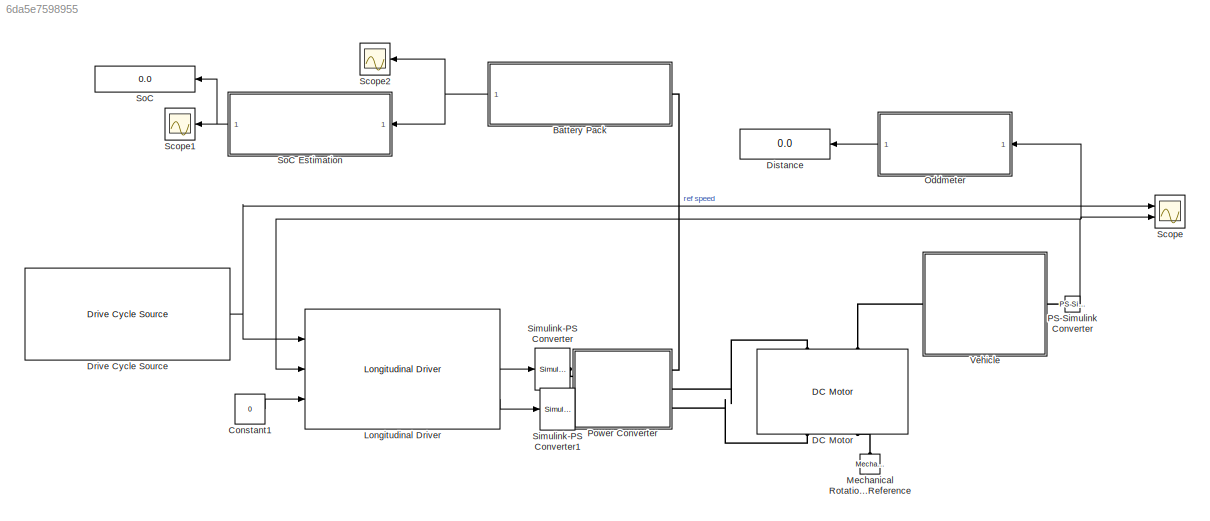
MODEL slx_6da5e7598955
KIND model
CONFIG AbsTol = auto
CONFIG EnableMultiTasking = off
CONFIG FixedStep = auto
CONFIG MaxStep = auto
CONFIG MinStep = auto
CONFIG RelTol = 1e-3
CONFIG SampleTimeConstraint = Unconstrained
CONFIG SolverName = VariableStepAuto
CONFIG StartTime = 0
CONFIG StopTime = 2474
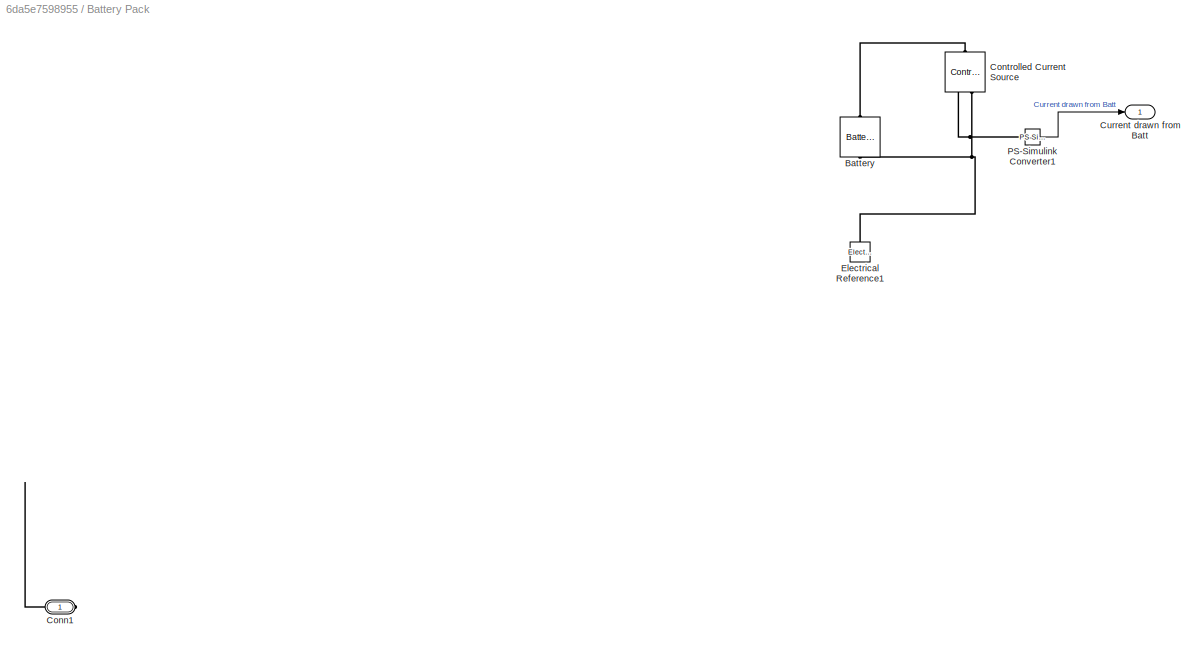
BLOCK [SubSystem] Battery Pack
  Ports = [0, 1, 0, 0, 0, 1]
  RequestExecContextInheritance = off
BLOCK [Reference] Battery Pack/Battery  REF=ee_lib/Sources/Battery
  NameLocation = right
  Ports = [0, 0, 0, 0, 0, 1, 1]
  SourceBlock = ee_lib/Sources/Battery
  SourceProductBaseCode = PS
  SourceType = Battery
BLOCK [PMIOPort] Battery Pack/Conn1
  Side = Left
BLOCK [Reference] Battery Pack/Controlled Current Source  REF=fl_lib/Electrical/Electrical Sources/Controlled Current
Source
  NameLocation = right
  Ports = [0, 0, 0, 0, 0, 1, 2]
  SourceBlock = fl_lib/Electrical/Electrical Sources/Controlled Current\nSource
  SourceProductBaseCode = SS
  SourceType = Controlled Current\nSource
BLOCK [Outport] Battery Pack/Current drawn from Batt
BLOCK [Reference] Battery Pack/Electrical Reference1  REF=fl_lib/Electrical/Electrical Elements/Electrical Reference
  NameLocation = right
  Ports = [0, 0, 0, 0, 0, 1]
  SourceBlock = fl_lib/Electrical/Electrical Elements/Electrical Reference
  SourceProductBaseCode = SS
  SourceType = Electrical Reference
BLOCK [Reference] Battery Pack/PS-Simulink Converter1  REF=nesl_utility/PS-Simulink
Converter
  Ports = [0, 1, 0, 0, 0, 1]
  SourceBlock = nesl_utility/PS-Simulink\nConverter
  SourceProductBaseCode = PW,SS
  SourceType = PS-Simulink\nConverter
BLOCK [Constant] Constant1
  Value = 0
BLOCK [Reference] DC Motor  REF=ee_lib/Electromechanical/Brushed Motors/DC Motor
  NameLocation = right
  Ports = [0, 0, 0, 0, 0, 2, 2]
  SourceBlock = ee_lib/Electromechanical/Brushed Motors/DC Motor
  SourceProductBaseCode = PS
  SourceType = DC Motor
BLOCK [Display] Distance 
  Decimation = 1
  Ports = [1]
BLOCK [Reference] Drive Cycle Source  REF=autolibshared/Drive Cycle Source
  AttributesFormatString = %<cycleVar> (%<tfinal>)
  Ports = [0, 1]
  SourceBlock = autolibshared/Drive Cycle Source
  SourceProductBaseCode = PW,DR,MT,UV,VE
  SourceType = Drive Cycle Source
BLOCK [Reference] Longitudinal Driver  REF=autolibshared/Longitudinal Driver
  Ports = [3, 3]
  SourceBlock = autolibshared/Longitudinal Driver
  SourceProductBaseCode = PW,DR,MT,UV,VE
  SourceType = Longitudinal Driver
BLOCK [Reference] Mechanical Rotational Reference  REF=fl_lib/Mechanical/Rotational Elements/Mechanical
Rotational Reference
  NameLocation = right
  Ports = [0, 0, 0, 0, 0, 1]
  SourceBlock = fl_lib/Mechanical/Rotational Elements/Mechanical\nRotational Reference
  SourceProductBaseCode = SS
  SourceType = Mechanical\nRotational Reference
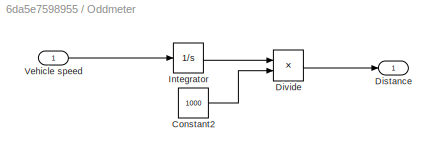
BLOCK [SubSystem] Oddmeter
  Ports = [1, 1]
  RequestExecContextInheritance = off
BLOCK [Constant] Oddmeter/Constant2
  Value = 1000
BLOCK [Outport] Oddmeter/Distance
BLOCK [Product] Oddmeter/Divide
  Inputs = */
  Ports = [2, 1]
BLOCK [Integrator] Oddmeter/Integrator
  Ports = [1, 1]
BLOCK [Inport] Oddmeter/Vehicle speed
BLOCK [Reference] PS-Simulink Converter  REF=nesl_utility/PS-Simulink
Converter
  NameLocation = top
  Ports = [0, 1, 0, 0, 0, 1]
  SourceBlock = nesl_utility/PS-Simulink\nConverter
  SourceProductBaseCode = PW,SS
  SourceType = PS-Simulink\nConverter
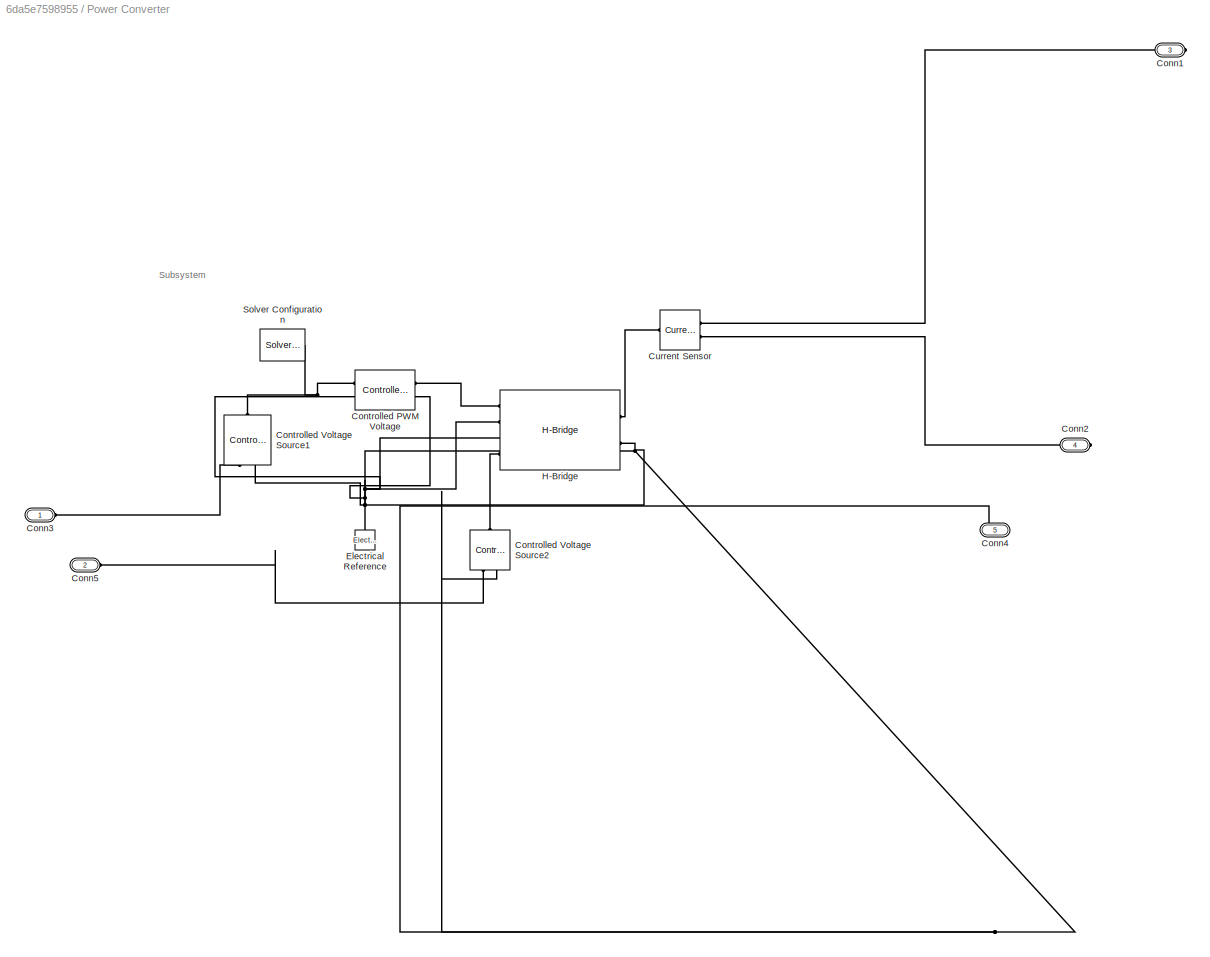
BLOCK [SubSystem] Power Converter
  Ports = [0, 0, 0, 0, 0, 2, 3]
  RequestExecContextInheritance = off
BLOCK [PMIOPort] Power Converter/Conn1
  Port = 3
  Side = Right
BLOCK [PMIOPort] Power Converter/Conn2
  Port = 4
  Side = Right
BLOCK [PMIOPort] Power Converter/Conn3
  Side = Left
BLOCK [PMIOPort] Power Converter/Conn4
  Port = 5
  Side = Right
BLOCK [PMIOPort] Power Converter/Conn5
  Port = 2
  Side = Left
BLOCK [Reference] Power Converter/Controlled PWM Voltage  REF=ee_lib/Integrated Circuits/Controlled PWM
Voltage
  Ports = [0, 0, 0, 0, 0, 2, 2]
  SourceBlock = ee_lib/Integrated Circuits/Controlled PWM\nVoltage
  SourceProductBaseCode = PS
  SourceType = Controlled PWM\nVoltage
BLOCK [Reference] Power Converter/Controlled Voltage Source1  REF=fl_lib/Electrical/Electrical Sources/Controlled Voltage
Source
  NameLocation = right
  Ports = [0, 0, 0, 0, 0, 1, 2]
  SourceBlock = fl_lib/Electrical/Electrical Sources/Controlled Voltage\nSource
  SourceProductBaseCode = SS
  SourceType = Controlled Voltage\nSource
BLOCK [Reference] Power Converter/Controlled Voltage Source2  REF=fl_lib/Electrical/Electrical Sources/Controlled Voltage
Source
  NameLocation = right
  Ports = [0, 0, 0, 0, 0, 1, 2]
  SourceBlock = fl_lib/Electrical/Electrical Sources/Controlled Voltage\nSource
  SourceProductBaseCode = SS
  SourceType = Controlled Voltage\nSource
BLOCK [Reference] Power Converter/Current Sensor  REF=fl_lib/Electrical/Electrical Sensors/Current Sensor
  Ports = [0, 0, 0, 0, 0, 1, 2]
  SourceBlock = fl_lib/Electrical/Electrical Sensors/Current Sensor
  SourceProductBaseCode = SS
  SourceType = Current Sensor
BLOCK [Reference] Power Converter/Electrical Reference  REF=fl_lib/Electrical/Electrical Elements/Electrical Reference
  NameLocation = right
  Ports = [0, 0, 0, 0, 0, 1]
  SourceBlock = fl_lib/Electrical/Electrical Elements/Electrical Reference
  SourceProductBaseCode = SS
  SourceType = Electrical Reference
BLOCK [Reference] Power Converter/H-Bridge  REF=ee_lib/Semiconductors &
Converters/Converters/H-Bridge
  Ports = [0, 0, 0, 0, 0, 4, 2]
  SourceBlock = ee_lib/Semiconductors &\nConverters/Converters/H-Bridge
  SourceProductBaseCode = PS
  SourceType = H-Bridge
BLOCK [Reference] Power Converter/Solver Configuration  REF=nesl_utility/Solver
Configuration
  Ports = [0, 0, 0, 0, 0, 0, 1]
  SourceBlock = nesl_utility/Solver\nConfiguration
  SourceProductBaseCode = PW,SS
  SourceType = Solver\nConfiguration
BLOCK [Scope] Scope
  Floating = off
  NumInputPorts = 2
  Ports = [2]
  ScopeSpecificationString = Simulink.scopes.TimeScopeBlockCfg('CurrentConfiguration', extmgr.ConfigurationSet(extmgr.Configuration('Core','General UI',true),extmgr.Configuration('Core','Source UI',true),extmgr.Configuration('Sources','WiredSimulink',true),extmgr.Configuration('Visuals','Time Domain',true,'SerializedDisplays',{struct('MinYLimReal','-3.1684','MaxYLimReal','28.51556','YLabelReal','','MinYLimMag','0.00000','MaxY...<+1426ch>
BLOCK [Scope] Scope1
  Floating = off
  NumInputPorts = 1
  Ports = [1]
  ScopeSpecificationString = Simulink.scopes.TimeScopeBlockCfg('CurrentConfiguration', extmgr.ConfigurationSet(extmgr.Configuration('Core','General UI',true),extmgr.Configuration('Core','Source UI',true),extmgr.Configuration('Sources','WiredSimulink',true,'DataLoggingVariableName','ScopeData1'),extmgr.Configuration('Visuals','Time Domain',true,'SerializedDisplays',{struct('MinYLimReal','0.83479','MaxYLimReal','1.01836','YLabe...<+1386ch>
BLOCK [Scope] Scope2
  Floating = off
  NumInputPorts = 1
  Ports = [1]
  ScopeSpecificationString = Simulink.scopes.TimeScopeBlockCfg('CurrentConfiguration', extmgr.ConfigurationSet(extmgr.Configuration('Core','General UI',true),extmgr.Configuration('Core','Source UI',true),extmgr.Configuration('Sources','WiredSimulink',true,'DataLoggingVariableName','ScopeData2'),extmgr.Configuration('Visuals','Time Domain',true,'SerializedDisplays',{struct('MinYLimReal','-1.00000','MaxYLimReal','1.00000','YLab...<+1411ch>
BLOCK [Reference] Simulink-PS Converter  REF=nesl_utility/Simulink-PS
Converter
  Ports = [1, 0, 0, 0, 0, 0, 1]
  SourceBlock = nesl_utility/Simulink-PS\nConverter
  SourceProductBaseCode = PW,SS
  SourceType = Simulink-PS\nConverter
BLOCK [Reference] Simulink-PS Converter1  REF=nesl_utility/Simulink-PS
Converter
  Ports = [1, 0, 0, 0, 0, 0, 1]
  SourceBlock = nesl_utility/Simulink-PS\nConverter
  SourceProductBaseCode = PW,SS
  SourceType = Simulink-PS\nConverter
BLOCK [Display] SoC
  Decimation = 1
  Ports = [1]
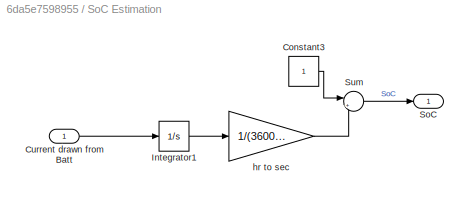
BLOCK [SubSystem] SoC Estimation
  Ports = [1, 1]
  RequestExecContextInheritance = off
BLOCK [Constant] SoC Estimation/Constant3
BLOCK [Inport] SoC Estimation/Current drawn from Batt
BLOCK [Integrator] SoC Estimation/Integrator1
  Ports = [1, 1]
BLOCK [Outport] SoC Estimation/SoC
BLOCK [Sum] SoC Estimation/Sum
  Inputs = |+-
  Ports = [2, 1]
BLOCK [Gain] SoC Estimation/hr to sec
  Gain = 1/(3600*94)
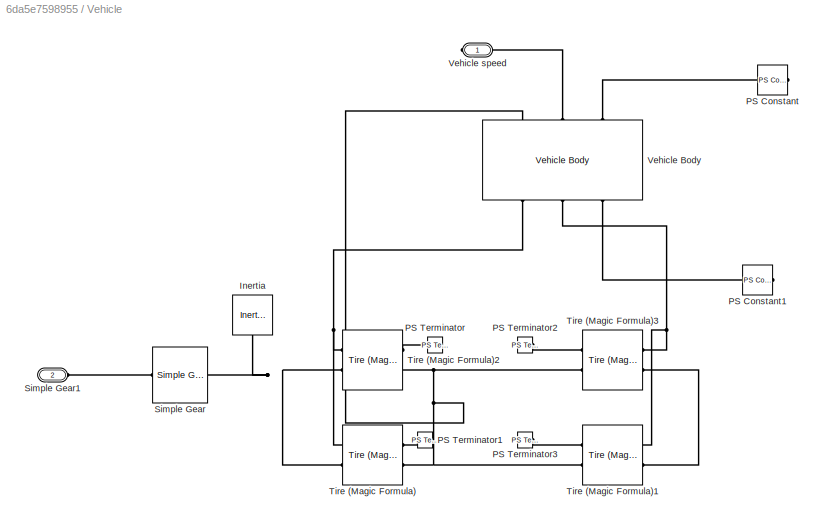
BLOCK [SubSystem] Vehicle 
  Ports = [0, 0, 0, 0, 0, 1, 1]
  RequestExecContextInheritance = off
BLOCK [Reference] Vehicle /Inertia  REF=fl_lib/Mechanical/Rotational Elements/Inertia
  NameLocation = left
  Ports = [0, 0, 0, 0, 0, 1]
  SourceBlock = fl_lib/Mechanical/Rotational Elements/Inertia
  SourceProductBaseCode = SS
  SourceType = Inertia
BLOCK [Reference] Vehicle /PS Constant  REF=fl_lib/Physical Signals/Sources/PS Constant
  NameLocation = top
  Ports = [0, 0, 0, 0, 0, 0, 1]
  SourceBlock = fl_lib/Physical Signals/Sources/PS Constant
  SourceProductBaseCode = SS
  SourceType = PS Constant
BLOCK [Reference] Vehicle /PS Constant1  REF=fl_lib/Physical Signals/Sources/PS Constant
  NameLocation = top
  Ports = [0, 0, 0, 0, 0, 0, 1]
  SourceBlock = fl_lib/Physical Signals/Sources/PS Constant
  SourceProductBaseCode = SS
  SourceType = PS Constant
BLOCK [Reference] Vehicle /PS Terminator  REF=fl_lib/Physical Signals/Sinks/PS Terminator
  Ports = [0, 0, 0, 0, 0, 1]
  SourceBlock = fl_lib/Physical Signals/Sinks/PS Terminator
  SourceProductBaseCode = SS
  SourceType = PS Terminator
BLOCK [Reference] Vehicle /PS Terminator1  REF=fl_lib/Physical Signals/Sinks/PS Terminator
  Ports = [0, 0, 0, 0, 0, 1]
  SourceBlock = fl_lib/Physical Signals/Sinks/PS Terminator
  SourceProductBaseCode = SS
  SourceType = PS Terminator
BLOCK [Reference] Vehicle /PS Terminator2  REF=fl_lib/Physical Signals/Sinks/PS Terminator
  Ports = [0, 0, 0, 0, 0, 1]
  SourceBlock = fl_lib/Physical Signals/Sinks/PS Terminator
  SourceProductBaseCode = SS
  SourceType = PS Terminator
BLOCK [Reference] Vehicle /PS Terminator3  REF=fl_lib/Physical Signals/Sinks/PS Terminator
  Ports = [0, 0, 0, 0, 0, 1]
  SourceBlock = fl_lib/Physical Signals/Sinks/PS Terminator
  SourceProductBaseCode = SS
  SourceType = PS Terminator
BLOCK [Reference] Vehicle /Simple Gear  REF=sdl_lib/Gears/Simple Gear
  Ports = [0, 0, 0, 0, 0, 1, 1]
  SourceBlock = sdl_lib/Gears/Simple Gear
  SourceProductBaseCode = LD
  SourceType = Simple Gear
BLOCK [PMIOPort] Vehicle /Simple Gear1
  Port = 2
  Side = Left
BLOCK [Reference] Vehicle /Tire (Magic Formula)  REF=sdl_lib/Tires & Vehicles/Tire (Magic Formula)
  Ports = [0, 0, 0, 0, 0, 2, 2]
  SourceBlock = sdl_lib/Tires & Vehicles/Tire (Magic Formula)
  SourceProductBaseCode = LD
  SourceType = Tire (Magic Formula)
BLOCK [Reference] Vehicle /Tire (Magic Formula)1  REF=sdl_lib/Tires & Vehicles/Tire (Magic Formula)
  Ports = [0, 0, 0, 0, 0, 2, 2]
  SourceBlock = sdl_lib/Tires & Vehicles/Tire (Magic Formula)
  SourceProductBaseCode = LD
  SourceType = Tire (Magic Formula)
BLOCK [Reference] Vehicle /Tire (Magic Formula)2  REF=sdl_lib/Tires & Vehicles/Tire (Magic Formula)
  Ports = [0, 0, 0, 0, 0, 2, 2]
  SourceBlock = sdl_lib/Tires & Vehicles/Tire (Magic Formula)
  SourceProductBaseCode = LD
  SourceType = Tire (Magic Formula)
BLOCK [Reference] Vehicle /Tire (Magic Formula)3  REF=sdl_lib/Tires & Vehicles/Tire (Magic Formula)
  NameLocation = top
  Ports = [0, 0, 0, 0, 0, 2, 2]
  SourceBlock = sdl_lib/Tires & Vehicles/Tire (Magic Formula)
  SourceProductBaseCode = LD
  SourceType = Tire (Magic Formula)
BLOCK [Reference] Vehicle /Vehicle Body  REF=sdl_lib/Tires & Vehicles/Vehicle Body
  NameLocation = right
  Ports = [0, 0, 0, 0, 0, 3, 3]
  SourceBlock = sdl_lib/Tires & Vehicles/Vehicle Body
  SourceProductBaseCode = LD
  SourceType = Vehicle Body
BLOCK [PMIOPort] Vehicle /Vehicle speed
  Side = Right
ANNOTATION Power Converter: Subsystem
LINE Battery Pack/PS-Simulink Converter1:1 -> Battery Pack/Current drawn from Batt:1
NET Battery Pack:1 -> Scope2:1, SoC Estimation:1
LINE Constant1:1 -> Longitudinal Driver:3
NET Drive Cycle Source:1 -> Longitudinal Driver:1, Scope:1
LINE Longitudinal Driver:2 -> Simulink-PS Converter:1
LINE Longitudinal Driver:3 -> Simulink-PS Converter1:1
LINE Oddmeter/Constant2:1 -> Oddmeter/Divide:2
LINE Oddmeter/Divide:1 -> Oddmeter/Distance:1
LINE Oddmeter/Integrator:1 -> Oddmeter/Divide:1
LINE Oddmeter/Vehicle speed:1 -> Oddmeter/Integrator:1
LINE Oddmeter:1 -> Distance :1
NET PS-Simulink Converter:1 -> Longitudinal Driver:2, Oddmeter:1, Scope:2
LINE SoC Estimation/Constant3:1 -> SoC Estimation/Sum:1
LINE SoC Estimation/Current drawn from Batt:1 -> SoC Estimation/Integrator1:1
LINE SoC Estimation/Integrator1:1 -> SoC Estimation/hr to sec:1
LINE SoC Estimation/Sum:1 -> SoC Estimation/SoC:1
LINE SoC Estimation/hr to sec:1 -> SoC Estimation/Sum:2
NET SoC Estimation:1 -> Scope1:1, SoC:1
PLINE Battery Pack/Battery:LConn1 -- Battery Pack/Controlled Current Source:LConn1
PNET net1: Battery Pack/Battery:RConn1 -- Battery Pack/Controlled Current Source:RConn2 -- Battery Pack/Electrical Reference1:LConn1
PNET net2: Battery Pack/Conn1:RConn1 -- Battery Pack/Controlled Current Source:RConn1 -- Battery Pack/PS-Simulink Converter1:LConn1
PLINE Battery Pack:LConn1 -- Power Converter:RConn1
PLINE DC Motor:LConn1 -- Power Converter:RConn2
PLINE DC Motor:LConn2 -- Vehicle :LConn1
PLINE DC Motor:RConn1 -- Power Converter:RConn3
PLINE DC Motor:RConn2 -- Mechanical Rotational Reference:LConn1
PLINE PS-Simulink Converter:LConn1 -- Vehicle :RConn1
PLINE Power Converter/Conn1:RConn1 -- Power Converter/Current Sensor:RConn1
PLINE Power Converter/Conn2:RConn1 -- Power Converter/Current Sensor:RConn2
PLINE Power Converter/Conn3:RConn1 -- Power Converter/Controlled Voltage Source1:RConn1
PNET net3: Power Converter/Conn4:RConn1 -- Power Converter/Controlled PWM Voltage:LConn2 -- Power Converter/Controlled PWM Voltage:RConn2 -- Power Converter/Controlled Voltage Source1:RConn2 -- Power Converter/Controlled Voltage Source2:RConn2 -- Power Converter/Electrical Reference:LConn1 -- Power Converter/H-Bridge:LConn2 -- Power Converter/H-Bridge:LConn3 -- Power Converter/H-Bridge:RConn2
PLINE Power Converter/Conn5:RConn1 -- Power Converter/Controlled Voltage Source2:RConn1
PNET net4: Power Converter/Controlled PWM Voltage:LConn1 -- Power Converter/Controlled Voltage Source1:LConn1 -- Power Converter/Solver Configuration:RConn1
PLINE Power Converter/Controlled PWM Voltage:RConn1 -- Power Converter/H-Bridge:LConn1
PLINE Power Converter/Controlled Voltage Source2:LConn1 -- Power Converter/H-Bridge:LConn4
PLINE Power Converter/Current Sensor:LConn1 -- Power Converter/H-Bridge:RConn1
PLINE Power Converter:LConn1 -- Simulink-PS Converter:RConn1
PLINE Power Converter:LConn2 -- Simulink-PS Converter1:RConn1
PNET net5: Vehicle /Inertia:LConn1 -- Vehicle /Simple Gear:RConn1 -- Vehicle /Tire (Magic Formula)2:LConn2 -- Vehicle /Tire (Magic Formula):LConn2
PLINE Vehicle /PS Constant1:RConn1 -- Vehicle /Vehicle Body:RConn3
PLINE Vehicle /PS Constant:RConn1 -- Vehicle /Vehicle Body:LConn3
PLINE Vehicle /PS Terminator1:LConn1 -- Vehicle /Tire (Magic Formula):RConn1
PLINE Vehicle /PS Terminator2:LConn1 -- Vehicle /Tire (Magic Formula)3:RConn1
PLINE Vehicle /PS Terminator3:LConn1 -- Vehicle /Tire (Magic Formula)1:RConn1
PLINE Vehicle /PS Terminator:LConn1 -- Vehicle /Tire (Magic Formula)2:RConn1
PLINE Vehicle /Simple Gear1:RConn1 -- Vehicle /Simple Gear:LConn1
PNET net6: Vehicle /Tire (Magic Formula)1:LConn1 -- Vehicle /Tire (Magic Formula)3:LConn1 -- Vehicle /Vehicle Body:RConn2
PLINE Vehicle /Tire (Magic Formula)1:LConn2 -- Vehicle /Tire (Magic Formula)3:LConn2
PNET net7: Vehicle /Tire (Magic Formula)1:RConn2 -- Vehicle /Tire (Magic Formula)2:RConn2 -- Vehicle /Tire (Magic Formula)3:RConn2 -- Vehicle /Tire (Magic Formula):RConn2 -- Vehicle /Vehicle Body:LConn1
PNET net8: Vehicle /Tire (Magic Formula)2:LConn1 -- Vehicle /Tire (Magic Formula):LConn1 -- Vehicle /Vehicle Body:RConn1
PLINE Vehicle /Vehicle Body:LConn2 -- Vehicle /Vehicle speed:RConn1
note: NET lines group one-source signal fan-out (src -> all destinations, sorted); 1:1 wires keep LINE; PNET lines group multi-terminal physical nets as a canonical sorted terminal list (undirected conserving connections); 2-terminal nets keep the pairwise PLINE form
